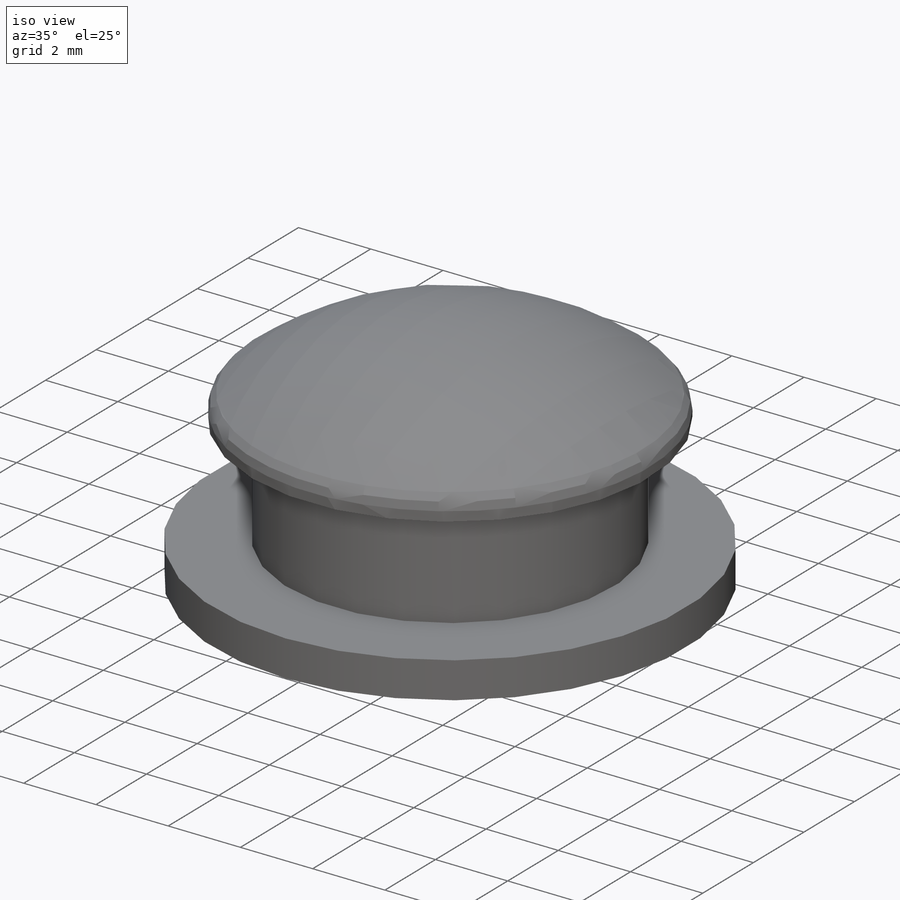
[diagram: iso view]
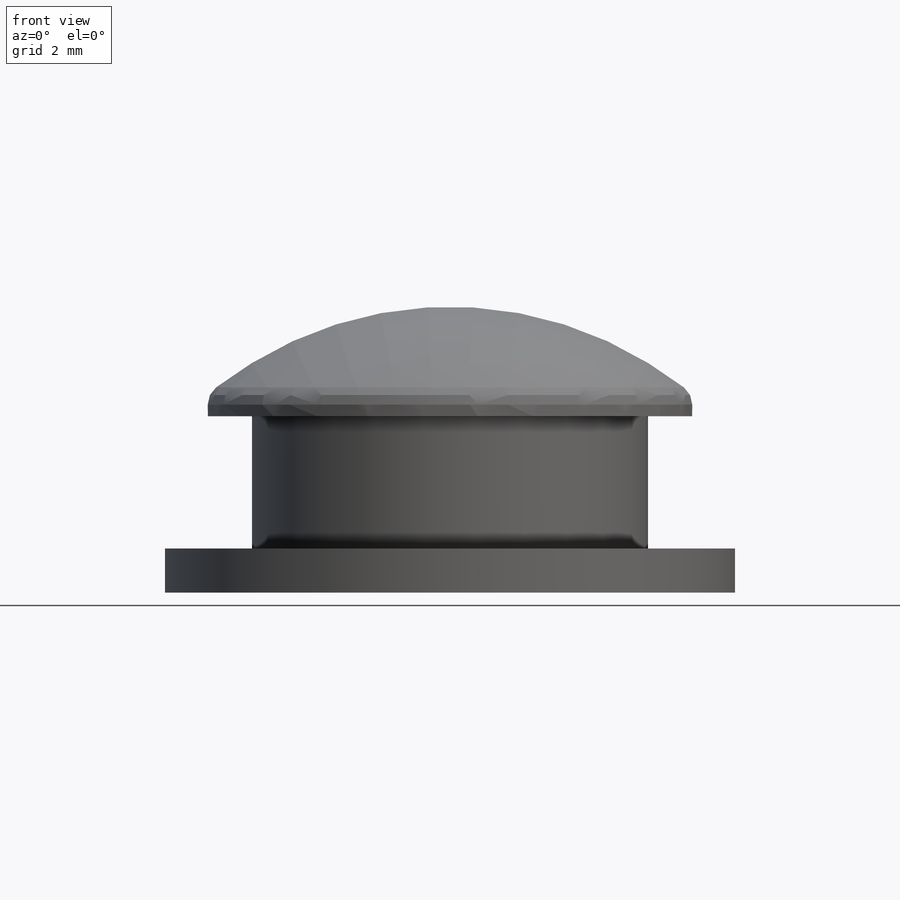
[diagram: front view]
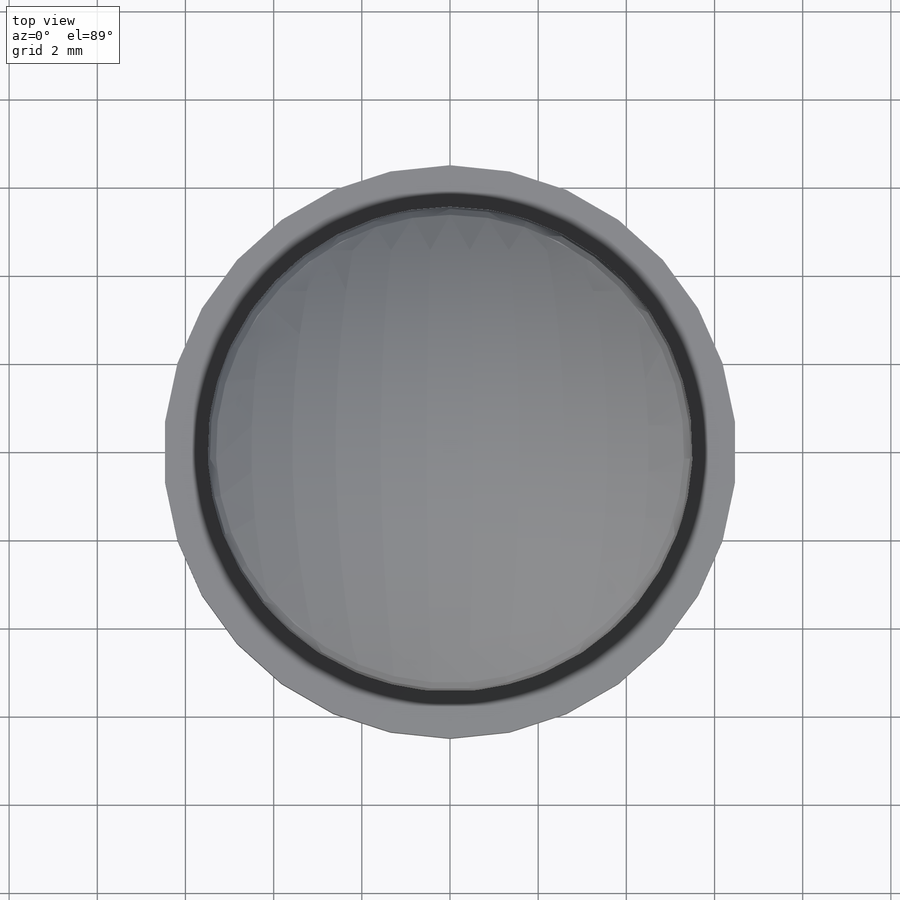
[diagram: top view]
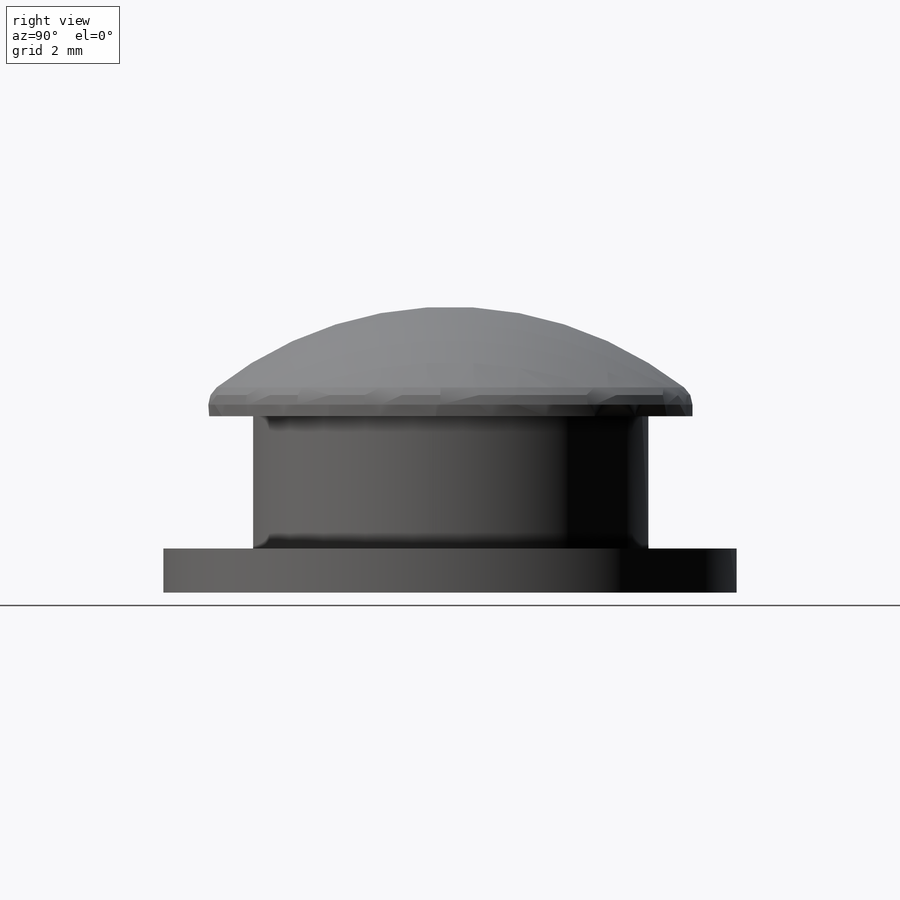
[diagram: right view]
SOLIDWORKS PART (.sldprt)
format: sldprt  version: not decoded by parser v0  size: 146,432 bytes
history: native  units: mm
features: plane x3, shell x2, material x1, sketch x1, revolve x1, dome x1, fillet x1 (+12 scaffold rows collapsed)
feature tree (22):
  scaffold x12  (default folders/planes/origin — collapsed)
  material  "Alliage 7079"
  plane  "Face"
  plane  "Dessus"
  plane  "Droite"
  sketch  "Esquisse1"  dims[D1=5.5mm D2=4.5mm D3=6.5mm D4=0.5mm D5=3.0mm D6=1.0mm]
  revolve  "Révolution1"  Angle=360deg
  dome  "Dôme1"
  fillet  "Congé1"  Radius=0.5mm
  shell  "Coque1"  Thickness=1mm
  shell  "Congé2"  Thickness=2mm
decode coverage: 5 of 6 modeling features carry decoded parameters
note: suppression state not decoded; provenance and decode notes live in map.json
